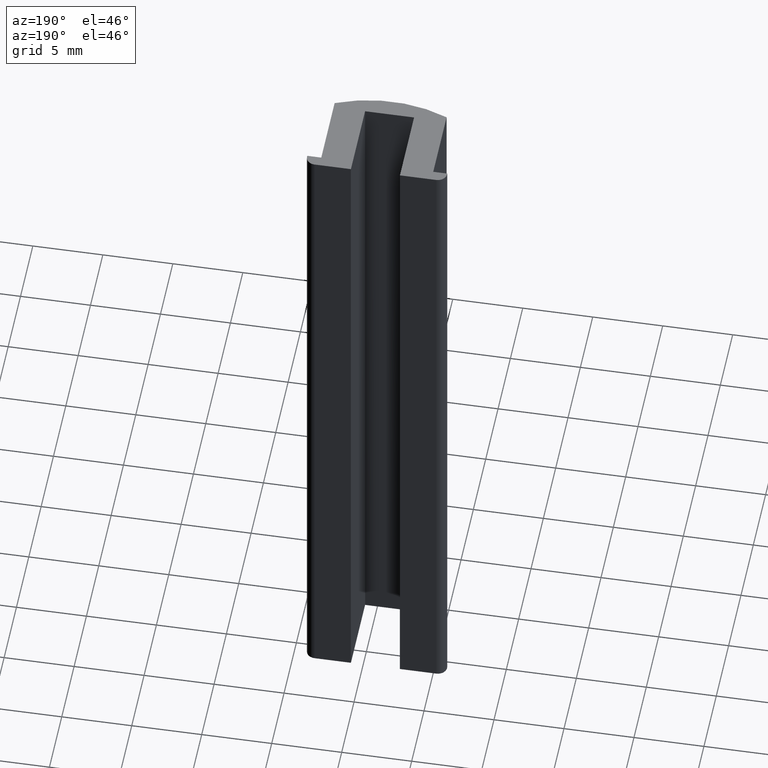
[diagram: clean part render]
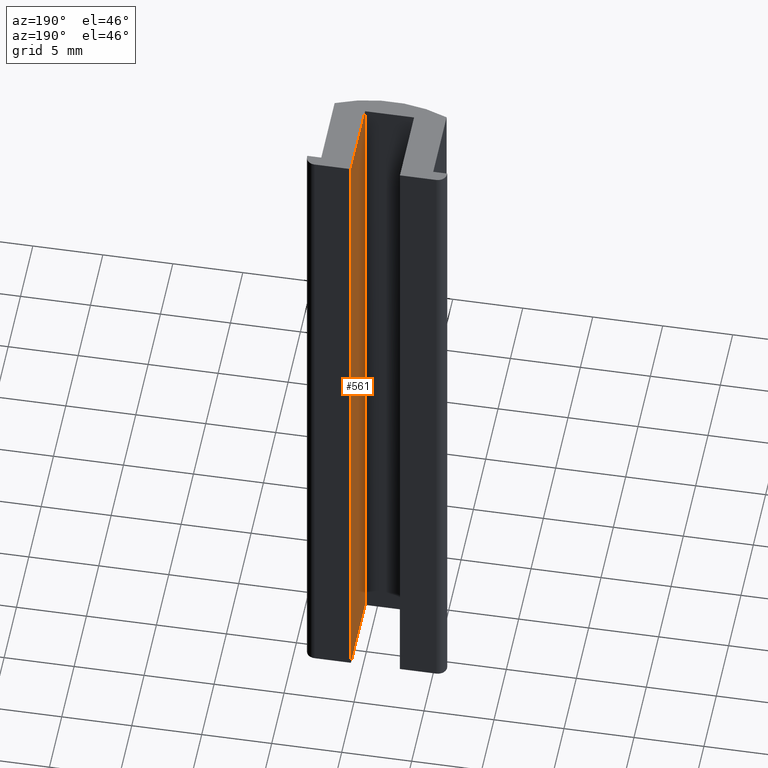
[diagram: same view with one face highlighted and labeled with its STEP entity id]
A machine part, auxiliary view. The second image highlights one B-rep face of the part: STEP entity #561.
In plain terms, the highlighted planar face has unit normal (1, 0, -0).
Its self-contained STEP definition (entity closure, byte-faithful):
#1 = PLANE ( 'NONE',  #492 ) ;
#2 = CARTESIAN_POINT ( 'NONE',  ( 5.750000000000000000, 7.000000000000000000, 50.00000000000000000 ) ) ;
#3 = DIRECTION ( 'NONE',  ( 1.000000000000000000, 0.0000000000000000000, -0.0000000000000000000 ) ) ;
#4 = DIRECTION ( 'NONE',  ( -0.0000000000000000000, 0.0000000000000000000, -1.000000000000000000 ) ) ;
#23 = EDGE_CURVE ( 'NONE', #546, #336, #534, .T. ) ;
#43 = EDGE_CURVE ( 'NONE', #339, #336, #479, .T. ) ;
#48 = EDGE_CURVE ( 'NONE', #337, #339, #470, .T. ) ;
#51 = EDGE_CURVE ( 'NONE', #337, #546, #145, .T. ) ;
#104 = FACE_OUTER_BOUND ( 'NONE', #382, .T. ) ;
#112 = CARTESIAN_POINT ( 'NONE',  ( 5.750000000000000000, 7.000000000000000000, 50.00000000000000000 ) ) ;
#113 = DIRECTION ( 'NONE',  ( -0.0000000000000000000, -0.0000000000000000000, -1.000000000000000000 ) ) ;
#118 = CARTESIAN_POINT ( 'NONE',  ( 5.750000000000000000, 7.000000000000000000, 50.00000000000000000 ) ) ;
#140 = VECTOR ( 'NONE', #113, 1000.000000000000000 ) ;
#145 = LINE ( 'NONE', #118, #146 ) ;
#146 = VECTOR ( 'NONE', #399, 1000.000000000000000 ) ;
#173 = CARTESIAN_POINT ( 'NONE',  ( 5.750000000000000000, 1.250000000000000000, 50.00000000000000000 ) ) ;
#280 = VECTOR ( 'NONE', #541, 1000.000000000000000 ) ;
#316 = ORIENTED_EDGE ( 'NONE', *, *, #43, .T. ) ;
#317 = ORIENTED_EDGE ( 'NONE', *, *, #23, .F. ) ;
#318 = ORIENTED_EDGE ( 'NONE', *, *, #51, .F. ) ;
#319 = ORIENTED_EDGE ( 'NONE', *, *, #48, .T. ) ;
#336 = VERTEX_POINT ( 'NONE', #421 ) ;
#337 = VERTEX_POINT ( 'NONE', #422 ) ;
#339 = VERTEX_POINT ( 'NONE', #424 ) ;
#349 = CARTESIAN_POINT ( 'NONE',  ( 5.750000000000000000, 7.000000000000000000, 0.0000000000000000000 ) ) ;
#350 = DIRECTION ( 'NONE',  ( 0.0000000000000000000, -1.000000000000000000, 0.0000000000000000000 ) ) ;
#382 = EDGE_LOOP ( 'NONE', ( #316, #317, #318, #319 ) ) ;
#399 = DIRECTION ( 'NONE',  ( 0.0000000000000000000, -1.000000000000000000, 0.0000000000000000000 ) ) ;
#421 = CARTESIAN_POINT ( 'NONE',  ( 5.750000000000000000, 1.250000000000000000, 0.0000000000000000000 ) ) ;
#422 = CARTESIAN_POINT ( 'NONE',  ( 5.750000000000000000, 7.000000000000000000, 50.00000000000000000 ) ) ;
#424 = CARTESIAN_POINT ( 'NONE',  ( 5.750000000000000000, 7.000000000000000000, 0.0000000000000000000 ) ) ;
#462 = VECTOR ( 'NONE', #350, 1000.000000000000000 ) ;
#470 = LINE ( 'NONE', #112, #140 ) ;
#479 = LINE ( 'NONE', #349, #462 ) ;
#492 = AXIS2_PLACEMENT_3D ( 'NONE', #2, #3, #4 ) ;
#534 = LINE ( 'NONE', #540, #280 ) ;
#540 = CARTESIAN_POINT ( 'NONE',  ( 5.750000000000000000, 1.250000000000000000, 50.00000000000000000 ) ) ;
#541 = DIRECTION ( 'NONE',  ( -0.0000000000000000000, -0.0000000000000000000, -1.000000000000000000 ) ) ;
#546 = VERTEX_POINT ( 'NONE', #173 ) ;
#561 = ADVANCED_FACE ( 'NONE', ( #104 ), #1, .F. ) ;